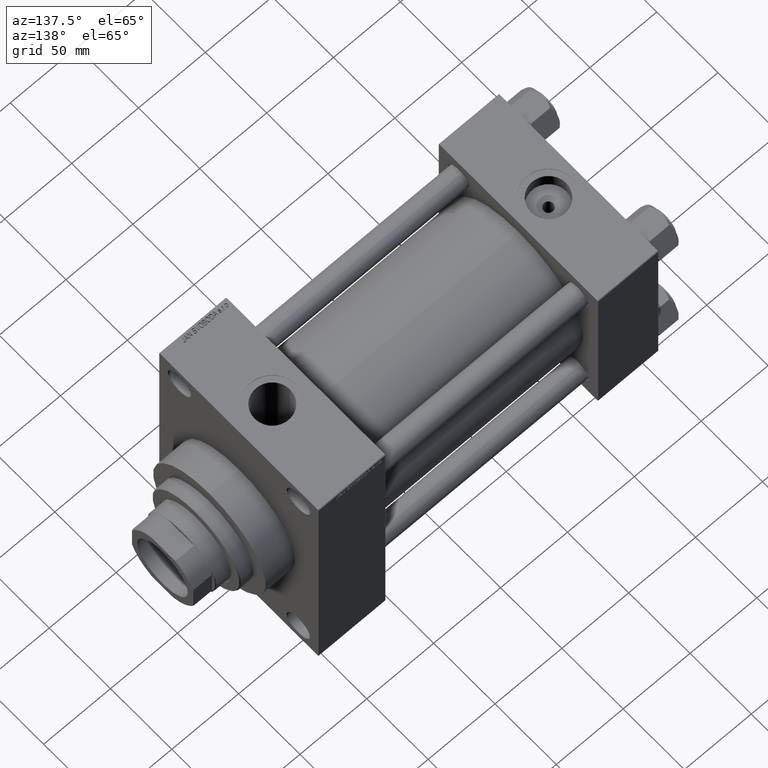
[diagram: clean part render]
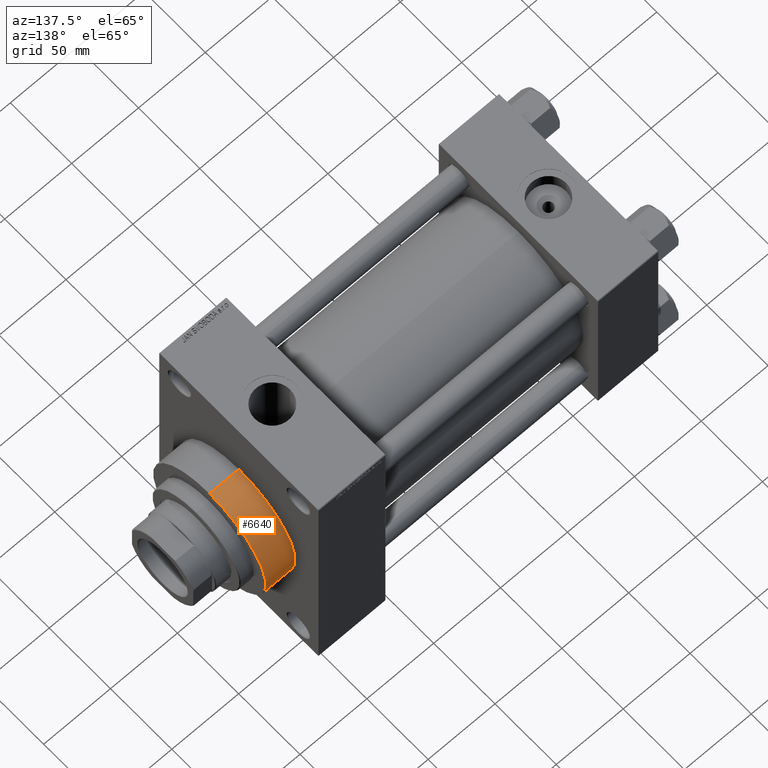
[diagram: same view with one face highlighted and labeled with its STEP entity id]
A machine part, auxiliary view. The second image highlights one B-rep face of the part: STEP entity #6640.
In plain terms, the highlighted cylindrical surface (partial cylindrical patch) has radius 46 mm, axis along (-1, -0, -0).
Its self-contained STEP definition (entity closure, byte-faithful):
#782 = EDGE_CURVE ( 'NONE', #47568, #23926, #22179, .T. ) ;
#3430 = CYLINDRICAL_SURFACE ( 'NONE', #14546, 46.00000000000000000 ) ;
#3443 = DIRECTION ( 'NONE',  ( 0.000000000000000000, 0.000000000000000000, -1.000000000000000000 ) ) ;
#5890 = CARTESIAN_POINT ( 'NONE',  ( 276.0000000000000000, 5.633375276077824704E-15, -46.00000000000000000 ) ) ;
#6189 = VERTEX_POINT ( 'NONE', #12679 ) ;
#6345 = CARTESIAN_POINT ( 'NONE',  ( 276.0000000000000000, 0.000000000000000000, 0.000000000000000000 ) ) ;
#6640 = ADVANCED_FACE ( 'NONE', ( #10191 ), #3430, .T. ) ;
#10191 = FACE_OUTER_BOUND ( 'NONE', #16330, .T. ) ;
#10644 = DIRECTION ( 'NONE',  ( 1.000000000000000000, 0.000000000000000000, 0.000000000000000000 ) ) ;
#10671 = DIRECTION ( 'NONE',  ( -1.000000000000000000, -0.000000000000000000, -0.000000000000000000 ) ) ;
#10684 = DIRECTION ( 'NONE',  ( 1.000000000000000000, 0.000000000000000000, 0.000000000000000000 ) ) ;
#12679 = CARTESIAN_POINT ( 'NONE',  ( 276.0000000000000000, 0.000000000000000000, 46.00000000000000000 ) ) ;
#14211 = EDGE_CURVE ( 'NONE', #6189, #40383, #35155, .T. ) ;
#14546 = AXIS2_PLACEMENT_3D ( 'NONE', #40357, #10671, #39635 ) ;
#15443 = ORIENTED_EDGE ( 'NONE', *, *, #782, .T. ) ;
#15724 = ORIENTED_EDGE ( 'NONE', *, *, #28142, .F. ) ;
#16112 = DIRECTION ( 'NONE',  ( -1.000000000000000000, -0.000000000000000000, -0.000000000000000000 ) ) ;
#16330 = EDGE_LOOP ( 'NONE', ( #15724, #15443, #35485, #26109 ) ) ;
#17409 = DIRECTION ( 'NONE',  ( 0.000000000000000000, 0.000000000000000000, -1.000000000000000000 ) ) ;
#18075 = EDGE_CURVE ( 'NONE', #23926, #40383, #21781, .T. ) ;
#21781 = CIRCLE ( 'NONE', #35615, 46.00000000000000000 ) ;
#22179 = LINE ( 'NONE', #22655, #46759 ) ;
#22655 = CARTESIAN_POINT ( 'NONE',  ( 276.0000000000000000, 5.633375276077824704E-15, -46.00000000000000000 ) ) ;
#23926 = VERTEX_POINT ( 'NONE', #39873 ) ;
#26109 = ORIENTED_EDGE ( 'NONE', *, *, #14211, .F. ) ;
#28142 = EDGE_CURVE ( 'NONE', #47568, #6189, #39511, .T. ) ;
#35155 = LINE ( 'NONE', #46263, #39385 ) ;
#35485 = ORIENTED_EDGE ( 'NONE', *, *, #18075, .T. ) ;
#35615 = AXIS2_PLACEMENT_3D ( 'NONE', #35753, #10644, #17409 ) ;
#35753 = CARTESIAN_POINT ( 'NONE',  ( 254.0000000000000000, 0.000000000000000000, 0.000000000000000000 ) ) ;
#37610 = DIRECTION ( 'NONE',  ( -1.000000000000000000, -0.000000000000000000, -0.000000000000000000 ) ) ;
#39385 = VECTOR ( 'NONE', #16112, 1000.000000000000000 ) ;
#39511 = CIRCLE ( 'NONE', #44882, 46.00000000000000000 ) ;
#39635 = DIRECTION ( 'NONE',  ( 0.000000000000000000, 0.000000000000000000, 1.000000000000000000 ) ) ;
#39873 = CARTESIAN_POINT ( 'NONE',  ( 254.0000000000000000, 5.633375276077824704E-15, -46.00000000000000000 ) ) ;
#40357 = CARTESIAN_POINT ( 'NONE',  ( 276.0000000000000000, 0.000000000000000000, 0.000000000000000000 ) ) ;
#40383 = VERTEX_POINT ( 'NONE', #41475 ) ;
#41475 = CARTESIAN_POINT ( 'NONE',  ( 254.0000000000000000, 0.000000000000000000, 46.00000000000000000 ) ) ;
#44882 = AXIS2_PLACEMENT_3D ( 'NONE', #6345, #10684, #3443 ) ;
#46263 = CARTESIAN_POINT ( 'NONE',  ( 276.0000000000000000, 0.000000000000000000, 46.00000000000000000 ) ) ;
#46759 = VECTOR ( 'NONE', #37610, 1000.000000000000000 ) ;
#47568 = VERTEX_POINT ( 'NONE', #5890 ) ;